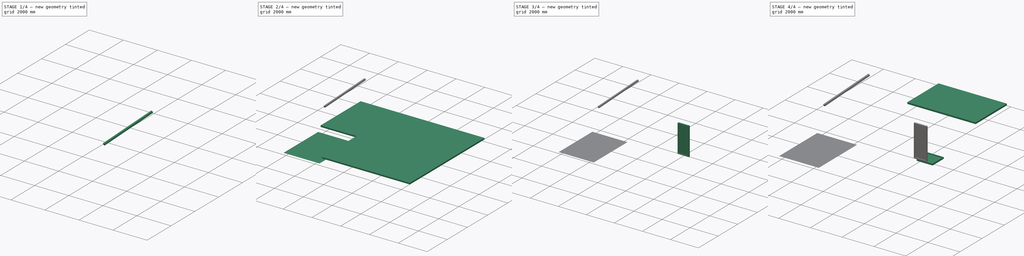
[diagram: build sequence overview — one tinted view per stage of 4, left to right]
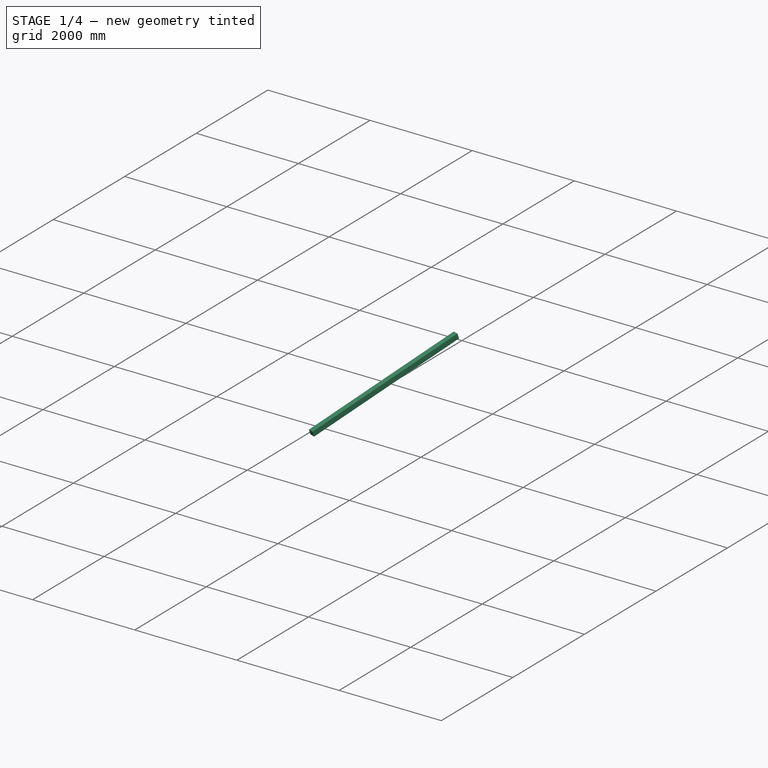
[diagram: stage 1 of 4 — iso view after this stage's code; geometry added in this stage tinted green]
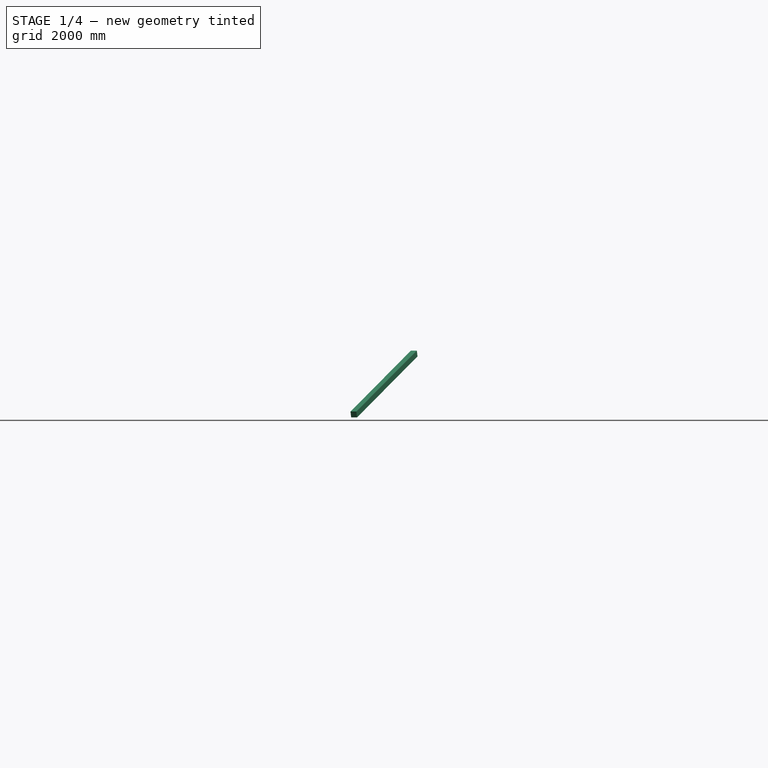
[diagram: stage 1 of 4 — front view after this stage's code; geometry added in this stage tinted green]
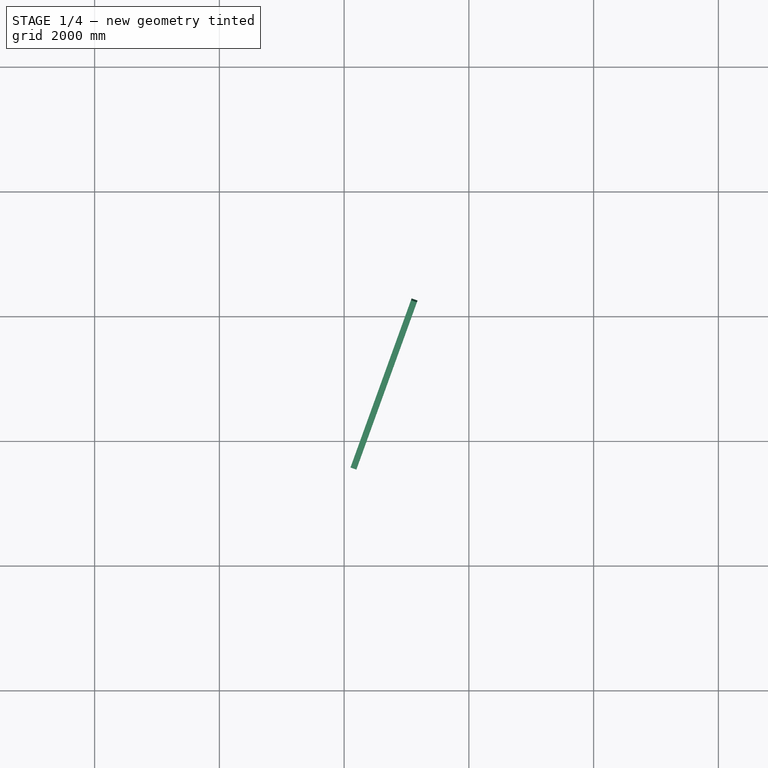
[diagram: stage 1 of 4 — top view after this stage's code; geometry added in this stage tinted green]
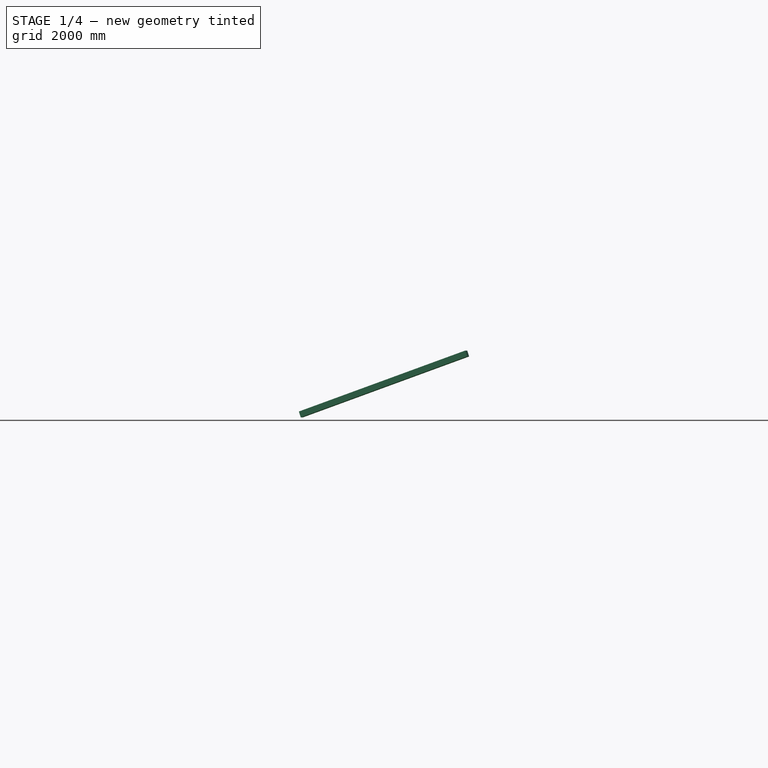
[diagram: stage 1 of 4 — right view after this stage's code; geometry added in this stage tinted green]
FCSTD DOCUMENT  (FreeCAD 0.18R16131 (Git))
Label: Home_terrace
License: All rights reserved
LicenseURL: http://en.wikipedia.org/wiki/All_rights_reserved
objects: Sketcher::SketchObject×11, Part::FeaturePython×8, Part::Extrusion×2, Part::RuledSurface×1, App::GeometryPython×1, App::MeasureDistance×1
note: 23 computed .brp shape members not serialized (recipe doc carries the construction recipe); baked Part::Feature solids carry a one-line shape summary decoded from their .brp

FEATURE [Sketcher::SketchObject] Sketch007
  ExternalGeometry = -> [Structure003,Wall]
  MapMode = 5
  Placement = pos=(0,0,100) rot=(0,0,1;0rad)
  Support = -> [Structure]
  sketch-geometry (4):
    g0: LineSegment StartX=3506.03 StartY=134.202 StartZ=0 EndX=3540.23 EndY=228.171 EndZ=0
    g1: LineSegment StartX=3506.03 StartY=134.202 StartZ=0 EndX=3600 EndY=100 EndZ=0
    g2: LineSegment StartX=3600 StartY=100 StartZ=0 EndX=3634.2 EndY=193.969 EndZ=0
    g3: LineSegment StartX=3634.2 StartY=193.969 StartZ=0 EndX=3540.23 EndY=228.171 EndZ=0
  constraints (12):
    c: Angle(g-2,g0) = 2.79253
    c: Perpendicular(g1,g0)
    c: Equal(g0,g1)
    c: Distance(g0) = 100
    c: Coincident(g1,g0)
    c: Parallel(g3,g1)
    c: Parallel(g0,g2)
    c: DistanceX(g-4,g1) = 1000
    c: Coincident(g3,g0)
    c: Coincident(g2,g1)
    c: Coincident(g3,g2)
    c: DistanceY(g-4,g1) = 0
FEATURE [Sketcher::SketchObject] Sketch008
  MapMode = 5
  Placement = pos=(3146.74,-1145.32,0) rot=(0.710565,0.497543,0.497543;1.90603rad)
  sketch-geometry (4):
    g0: LineSegment StartX=1325.24 StartY=1300 StartZ=0 EndX=6998.35 EndY=3253.41 EndZ=0
    g1: LineSegment StartX=6998.35 StartY=3253.41 StartZ=0 EndX=6965.8 EndY=3347.96 EndZ=0
    g2: LineSegment StartX=6965.8 StartY=3347.96 StartZ=0 EndX=1292.68 EndY=1394.55 EndZ=0
    g3: LineSegment StartX=1292.68 StartY=1394.55 StartZ=0 EndX=1325.24 EndY=1300 EndZ=0
  constraints (9):
    c: Coincident(g0,g1)
    c: Coincident(g1,g2)
    c: Coincident(g2,g3)
    c: Coincident(g3,g0)
    c: Perpendicular(g0,g3)
    c: Perpendicular(g2,g3)
    c: Equal(g2,g0)
    c: Distance(g2) = 6000
    c: Distance(g3) = 100
FEATURE [Sketcher::SketchObject] Sketch012
  MapMode = 5
  Placement = pos=(0,0,100) rot=(0,0,1;0rad)
  sketch-geometry (4):
    g0: LineSegment StartX=101.67 StartY=3579.99 StartZ=0 EndX=135.872 EndY=3673.96 EndZ=0
    g1: LineSegment StartX=101.67 StartY=3579.99 StartZ=0 EndX=195.639 EndY=3545.79 EndZ=0
    g2: LineSegment StartX=195.639 StartY=3545.79 StartZ=0 EndX=229.841 EndY=3639.75 EndZ=0
    g3: LineSegment StartX=229.841 StartY=3639.75 StartZ=0 EndX=135.872 EndY=3673.96 EndZ=0
  constraints (10):
    c: Angle(g-2,g0) = 2.79253
    c: Perpendicular(g1,g0)
    c: Equal(g0,g1)
    c: Distance(g0) = 100
    c: Coincident(g1,g0)
    c: Parallel(g3,g1)
    c: Parallel(g0,g2)
    c: Coincident(g3,g0)
    c: Coincident(g2,g1)
    c: Coincident(g3,g2)
FEATURE [Part::Extrusion] Extrude002
  Base = -> Sketch012
  Dir = (0,0,1)
  DirMode = 2
  FaceMakerClass = Part::FaceMakerBullseye
  LengthFwd = 1200
  LengthRev = 0
  Solid = true
  Symmetric = false
FEATURE [Sketcher::SketchObject] Sketch013
  ExternalGeometry = -> [Extrude002]
  MapMode = 5
  Placement = pos=(-966.84,351.901,-5.367e-13) rot=(0.710565,0.497543,0.497543;1.90603rad)
  Support = -> [Extrude002]
  sketch-geometry (4):
    g0: LineSegment StartX=3398.86 StartY=1300 StartZ=0 EndX=6235.42 EndY=2276.7 EndZ=0
    g1: LineSegment StartX=6235.42 StartY=2276.7 StartZ=0 EndX=6267.97 EndY=2182.15 EndZ=0
    g2: LineSegment StartX=6267.97 StartY=2182.15 StartZ=0 EndX=3431.42 EndY=1205.45 EndZ=0
    g3: LineSegment StartX=3431.42 StartY=1205.45 StartZ=0 EndX=3398.86 EndY=1300 EndZ=0
  constraints (11):
    c: Coincident(g0,g1)
    c: Coincident(g1,g2)
    c: Coincident(g2,g3)
    c: Coincident(g3,g0)
    c: Perpendicular(g0,g3)
    c: Perpendicular(g2,g3)
    c: Equal(g2,g0)
    c: Coincident(g0,g-3)
    c: Distance(g2) = 3000
    c: Distance(g3) = 100
    c: Angle(g-3,g0) = 0.331613
FEATURE [Part::Extrusion] Extrude003
  Base = -> Sketch013
  Dir = (0.939693,-0.34202,4e-16)
  DirMode = 2
  FaceMakerClass = Part::FaceMakerBullseye
  LengthFwd = -100
  LengthRev = 0
  Solid = true
  Symmetric = false
FEATURE [Sketcher::SketchObject] Sketch014
  MapMode = 5
  Placement = pos=(-2.51802,-6.9182,21.3814) rot=(0.998405,-0.008796,0.05576;3.45403rad)
  Support = -> [Extrude003]
  sketch-geometry (4):
    g0: LineSegment StartX=-516.125 StartY=-6452.76 StartZ=0 EndX=5483.88 EndY=-6452.76 EndZ=0
    g1: LineSegment StartX=5483.88 StartY=-6452.76 StartZ=0 EndX=5483.88 EndY=-2452.76 EndZ=0
    g2: LineSegment StartX=5483.88 StartY=-2452.76 StartZ=0 EndX=-516.125 EndY=-2452.76 EndZ=0
    g3: LineSegment StartX=-516.125 StartY=-2452.76 StartZ=0 EndX=-516.125 EndY=-6452.76 EndZ=0
  constraints (10):
    c: Coincident(g0,g1)
    c: Coincident(g1,g2)
    c: Coincident(g2,g3)
    c: Coincident(g3,g0)
    c: Horizontal(g0)
    c: Horizontal(g2)
    c: Vertical(g1)
    c: Vertical(g3)
    c: Distance(g1) = 4000
    c: Distance(g0) = 6000
FEATURE [Part::RuledSurface] Ruled_Surface001
  Curve1 = -> Sketch014 [Edge3]
  Curve2 = -> Sketch014 [Edge1]
  Orientation = 0
  Placement = pos=(-2.51802,-6.9182,21.3814) rot=(0.998405,-0.008796,0.05576;3.45403rad)
FEATURE [App::GeometryPython] BuildingPart001  label="Building001"  # Arch/BIM object (typed FeaturePython)
  Area = 0
  BuildingType = 0
  Group = -> [Extrude003,Extrude002,Ruled_Surface001]
  Height = 0
  IfcRole = 11
  LevelOffset = 0
FEATURE [App::MeasureDistance] Distance  label="Distance: 2.27 m"
  Distance = 2268.9
  P1 = (-537.703,6296.75,2209.51)
  P2 = (-100,6023.96,0)
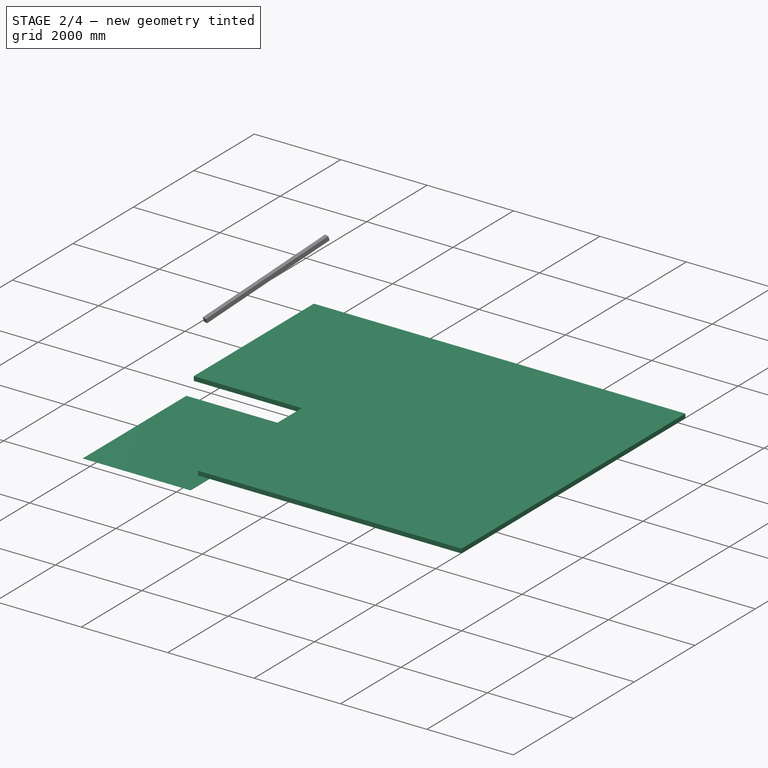
[diagram: stage 2 of 4 — iso view after this stage's code; geometry added in this stage tinted green]
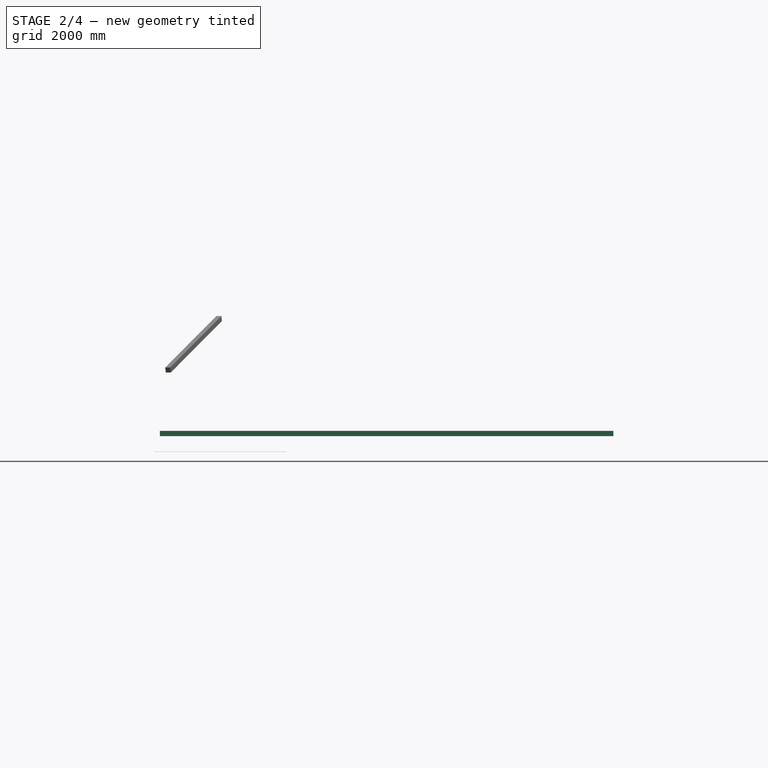
[diagram: stage 2 of 4 — front view after this stage's code; geometry added in this stage tinted green]
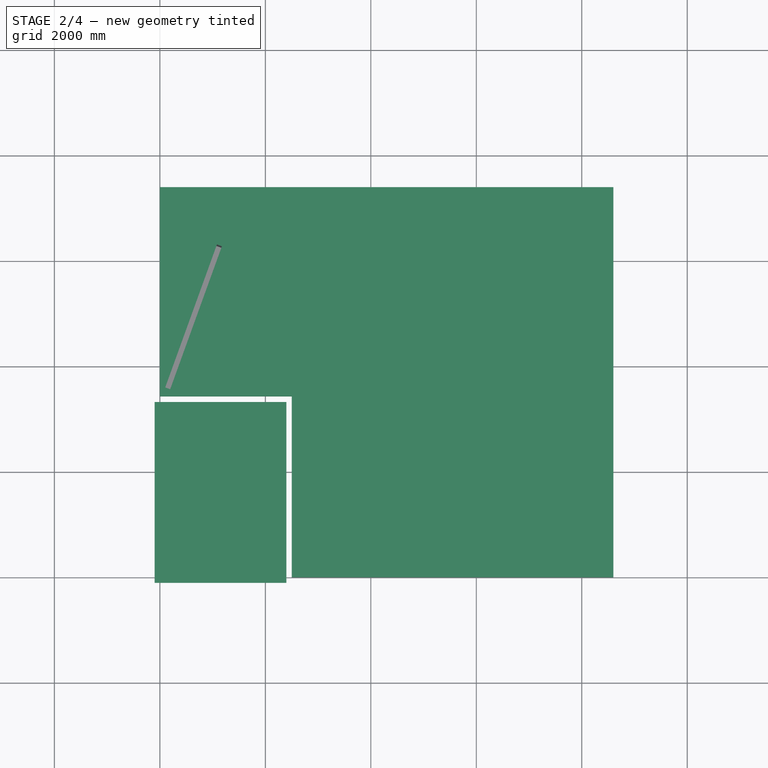
[diagram: stage 2 of 4 — top view after this stage's code; geometry added in this stage tinted green]
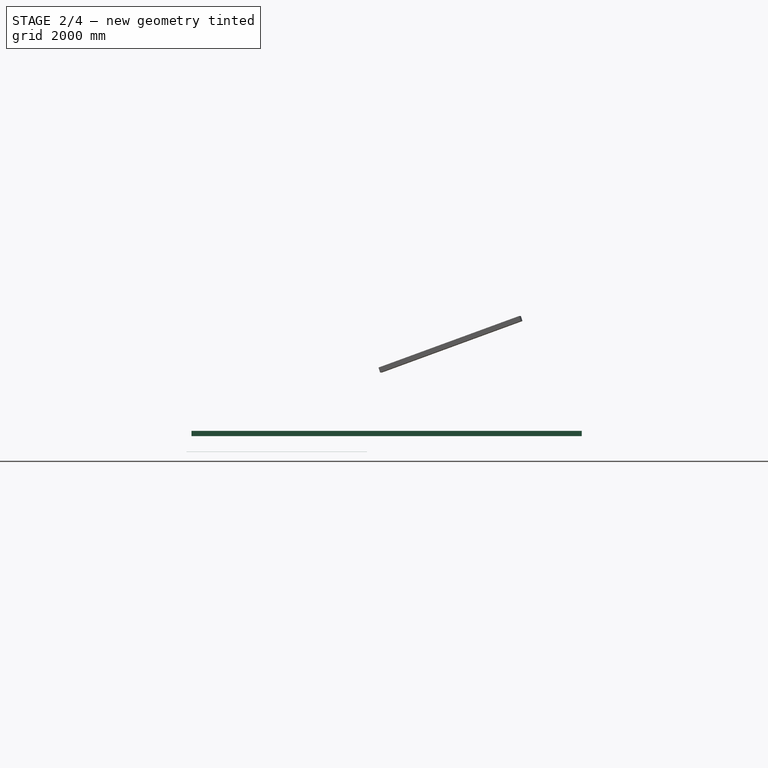
[diagram: stage 2 of 4 — right view after this stage's code; geometry added in this stage tinted green]
FEATURE [Part::FeaturePython] Structure  # Arch/BIM object (typed FeaturePython)
  Base = -> Sketch
  FaceMaker = 0
  Height = 100
  HorizontalArea = 54065000
  IfcRole = 0
  Length = 0
  MoveWithHost = false
  Nodes = (2) [(4774.96,4009.11,0),(4774.96,4009.11,100)]
  NodesOffset = 0
  Normal = (0,0,0)
  PerimeterLength = 32000
  VerticalArea = 3600000
  Width = 100
FEATURE [Part::FeaturePython] Wall002  # Arch/BIM object (typed FeaturePython)
  Align = 2
  Base = -> Sketch
  BlockHeight = 0
  BlockLength = 0
  CountBroken = 0
  CountEntire = 0
  Face = 0
  Height = -300
  HorizontalArea = 6400000
  IfcRole = 156
  Joint = 0
  Length = 32000
  MakeBlocks = false
  MoveWithHost = false
  Normal = (0,0,0)
  OffsetFirst = 0
  OffsetSecond = 0
  PerimeterLength = 32800
  VerticalArea = 19200000
  Width = 200
  expr: Height = -0.3m
FEATURE [Sketcher::SketchObject] Sketch006
  ExternalGeometry = -> [Wall002]
  MapMode = 5
  Placement = pos=(0,0,-300) rot=(1,0,0;3.14159rad)
  Support = -> [Wall002]
  sketch-geometry (4):
    g0: LineSegment StartX=2400 StartY=100 StartZ=0 EndX=-100 EndY=100 EndZ=0
    g1: LineSegment StartX=-100 StartY=100 StartZ=0 EndX=-100 EndY=-3330 EndZ=0
    g2: LineSegment StartX=-100 StartY=-3330 StartZ=0 EndX=2400 EndY=-3330 EndZ=0
    g3: LineSegment StartX=2400 StartY=-3330 StartZ=0 EndX=2400 EndY=100 EndZ=0
  constraints (8):
    c: Coincident(g0,g1)
    c: Coincident(g1,g2)
    c: Coincident(g2,g3)
    c: Coincident(g3,g0)
    c: Horizontal(g0)
    c: Horizontal(g2)
    c: Vertical(g1)
    c: Vertical(g3)
FEATURE [Part::FeaturePython] Structure003  # Arch/BIM object (typed FeaturePython)
  Base = -> Sketch006
  FaceMaker = 0
  Height = -100
  HorizontalArea = 8575000
  IfcRole = 0
  Length = 0
  MoveWithHost = false
  Nodes = (2) [(1150,1615,-300),(1150,1615,-301)]
  NodesOffset = 0
  Normal = (0,0,0)
  PerimeterLength = 11860
  VerticalArea = 11860
  Width = 100
  expr: Height = -0.1m
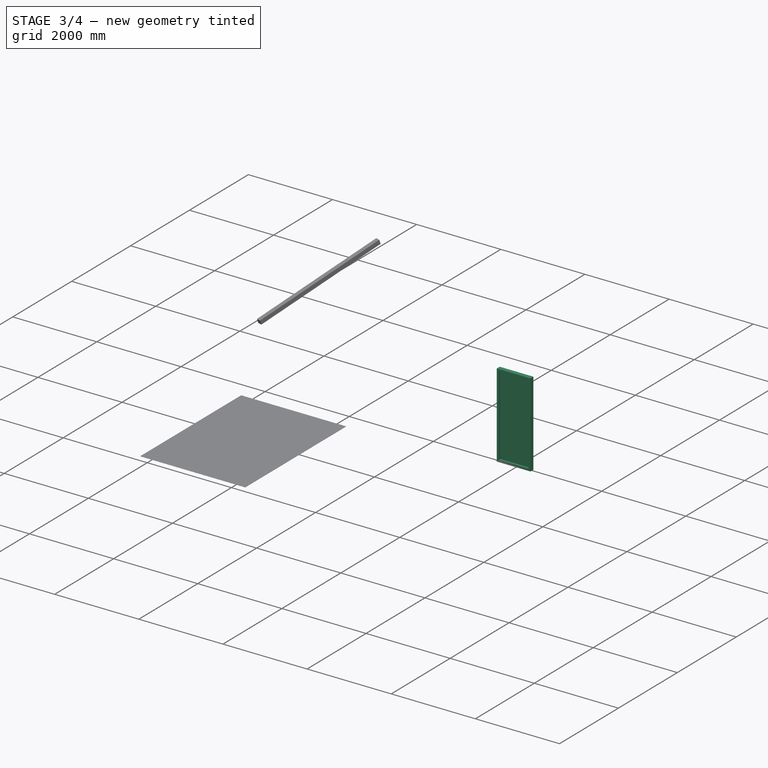
[diagram: stage 3 of 4 — iso view after this stage's code; geometry added in this stage tinted green]
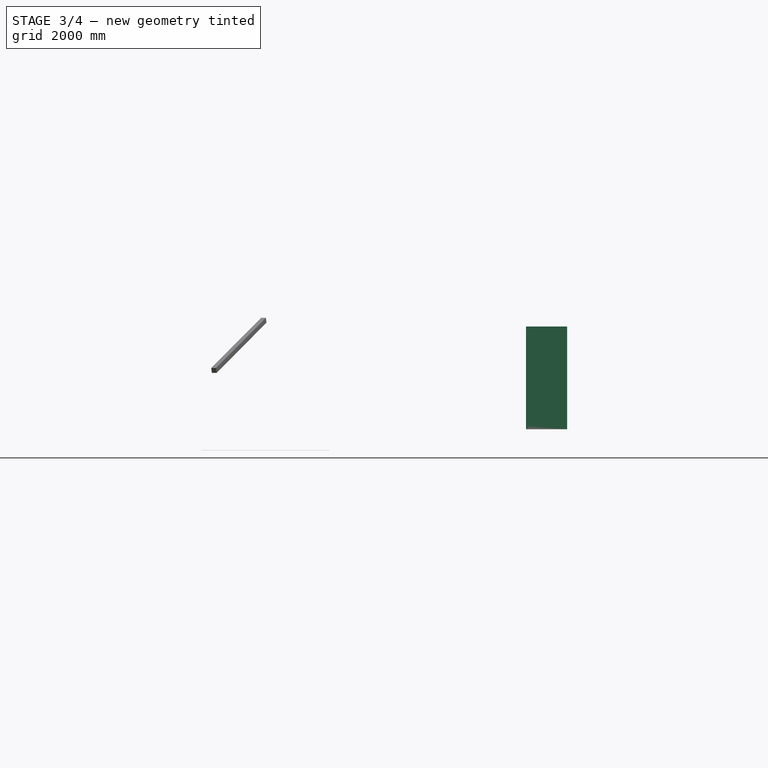
[diagram: stage 3 of 4 — front view after this stage's code; geometry added in this stage tinted green]
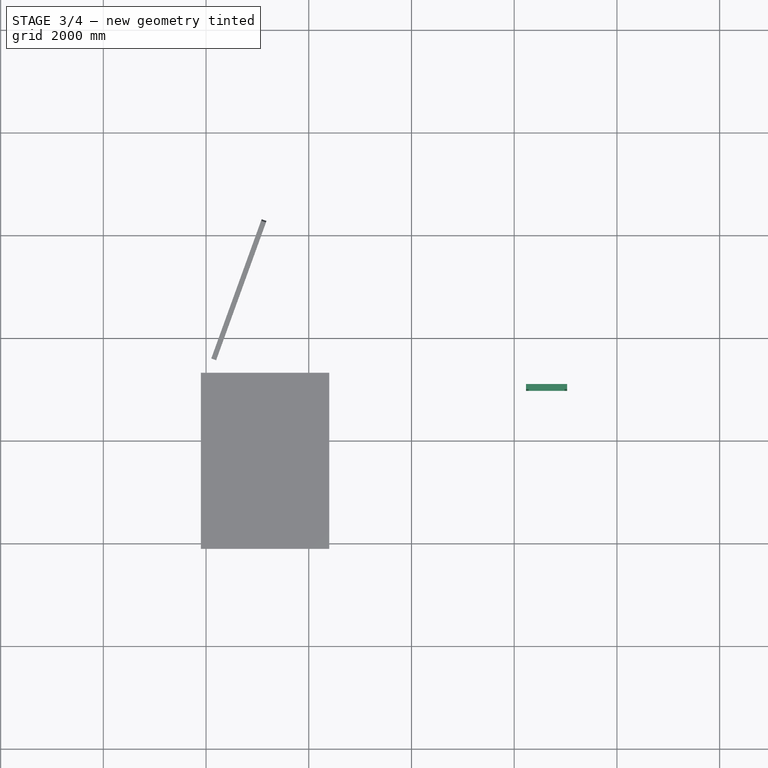
[diagram: stage 3 of 4 — top view after this stage's code; geometry added in this stage tinted green]
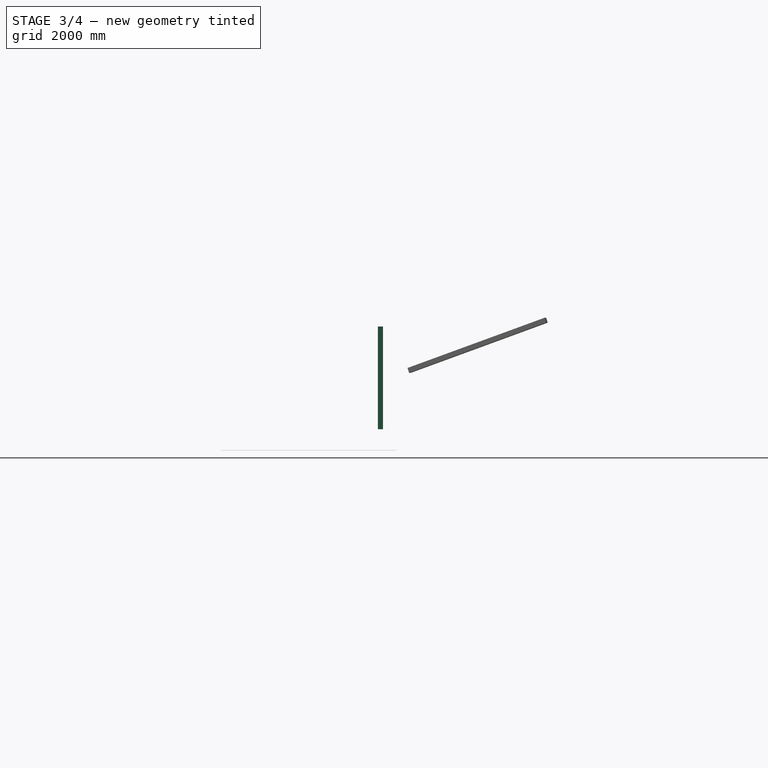
[diagram: stage 3 of 4 — right view after this stage's code; geometry added in this stage tinted green]
FEATURE [Sketcher::SketchObject] Sketch
  MapMode = 2
  Support = -> [Sketch]
  sketch-geometry (22):
    g0: LineSegment [constr] StartX=0 StartY=0 StartZ=0 EndX=8600 EndY=0 EndZ=0
    g1: LineSegment [constr] StartX=8600 StartY=0 StartZ=0 EndX=8600 EndY=7400 EndZ=0
    g2: LineSegment [constr] StartX=8600 StartY=7400 StartZ=0 EndX=0 EndY=7400 EndZ=0
    g3: LineSegment [constr] StartX=0 StartY=7400 StartZ=0 EndX=0 EndY=0 EndZ=0
    g4: LineSegment [constr] StartX=0 StartY=0 StartZ=0 EndX=2500 EndY=0 EndZ=0
    g5: LineSegment [constr] StartX=2500 StartY=0 StartZ=0 EndX=2500 EndY=3430 EndZ=0
    g6: LineSegment [constr] StartX=2500 StartY=3430 StartZ=0 EndX=0 EndY=3430 EndZ=0
    g7: LineSegment [constr] StartX=0 StartY=3430 StartZ=0 EndX=0 EndY=0 EndZ=0
    g8: LineSegment [constr] StartX=6100 StartY=5680 StartZ=0 EndX=10701.7 EndY=5680 EndZ=0
    g9: LineSegment [constr] StartX=10701.7 StartY=5680 StartZ=0 EndX=10701.7 EndY=3180 EndZ=0
    g10: LineSegment [constr] StartX=10701.7 StartY=3180 StartZ=0 EndX=6100 EndY=3180 EndZ=0
    g11: LineSegment [constr] StartX=6100 StartY=3180 StartZ=0 EndX=6100 EndY=5680 EndZ=0
    g12: GeomPoint X=8600 Y=5680 Z=0
    g13: GeomPoint X=8600 Y=3180 Z=0
    g14: LineSegment StartX=8600 StartY=5680 StartZ=0 EndX=8600 EndY=7400 EndZ=0
    g15: LineSegment StartX=8600 StartY=7400 StartZ=0 EndX=0 EndY=7400 EndZ=0
    g16: LineSegment StartX=0 StartY=7400 StartZ=0 EndX=0 EndY=3430 EndZ=0
    g17: LineSegment StartX=0 StartY=3430 StartZ=0 EndX=2500 EndY=3430 EndZ=0
    g18: LineSegment StartX=2500 StartY=3430 StartZ=0 EndX=2500 EndY=0 EndZ=0
    g19: LineSegment StartX=2500 StartY=0 StartZ=0 EndX=8600 EndY=0 EndZ=0
    g20: LineSegment StartX=8600 StartY=0 StartZ=0 EndX=8600 EndY=3180 EndZ=0
    g21: LineSegment StartX=8600 StartY=3180 StartZ=0 EndX=8600 EndY=5680 EndZ=0
  constraints (52):
    c: Coincident(g0,g1)
    c: Coincident(g1,g2)
    c: Coincident(g2,g3)
    c: Coincident(g3,g0)
    c: Horizontal(g0)
    c: Horizontal(g2)
    c: Vertical(g1)
    c: Vertical(g3)
    c: Distance(g1) = 7400
    c: Distance(g2) = 8600
    c: PointOnObject(g0,g-1)
    c: Coincident(g4,g5)
    c: Coincident(g5,g6)
    c: Coincident(g6,g7)
    c: Coincident(g7,g4)
    c: Horizontal(g4)
    c: Horizontal(g6)
    c: Vertical(g5)
    c: Vertical(g7)
    c: Distance(g6) = 2500
    c: Distance(g5) = 3430
    c: PointOnObject(g6,g3)
    c: PointOnObject(g4,g0)
    c: Coincident(g8,g9)
    c: Coincident(g9,g10)
    c: Coincident(g10,g11)
    c: Coincident(g11,g8)
    c: Horizontal(g8)
    c: Horizontal(g10)
    c: Vertical(g9)
    c: Vertical(g11)
    c: Distance(g11) = 2500
    c: PointOnObject(g-1,g3)
    c: DistanceX(g8,g1) = 2500
    c: DistanceY(g8,g1) = 1720
    c: PointOnObject(g12,g8)
    c: PointOnObject(g13,g10)
    c: PointOnObject(g12,g1)
    c: PointOnObject(g13,g1)
    c: Coincident(g14,g15)
    c: Coincident(g15,g16)
    c: Coincident(g16,g17)
    c: Coincident(g17,g18)
    c: Coincident(g18,g19)
    c: Coincident(g19,g20)
    c: Coincident(g13,g20)
    c: Coincident(g1,g14)
    c: Coincident(g15,g2)
    c: Coincident(g16,g6)
    c: Coincident(g17,g5)
    c: Coincident(g18,g4)
    c: Coincident(g19,g0)
FEATURE [Part::FeaturePython] Wall  # Arch/BIM object (typed FeaturePython)
  Align = 2
  Base = -> Sketch
  BlockHeight = 0
  BlockLength = 0
  CountBroken = 0
  CountEntire = 0
  Face = 0
  Height = 1000
  HorizontalArea = 6400000
  IfcRole = 156
  Joint = 0
  Length = 32000
  MakeBlocks = false
  MoveWithHost = false
  Normal = (0,0,0)
  OffsetFirst = 0
  OffsetSecond = 0
  PerimeterLength = 32800
  VerticalArea = 64000000
  Width = 200
FEATURE [Sketcher::SketchObject] Sketch001
  ExternalGeometry = -> [Wall]
  MapMode = 5
  Placement = pos=(2500,0,0) rot=(0.57735,-0.57735,-0.57735;2.0944rad)
  Support = -> [Structure]
  sketch-geometry (4):
    g0: LineSegment StartX=-5800 StartY=-720 StartZ=0 EndX=-9800 EndY=-720 EndZ=0
    g1: LineSegment StartX=-9800 StartY=-720 StartZ=0 EndX=-9800 EndY=1780 EndZ=0
    g2: LineSegment StartX=-9800 StartY=1780 StartZ=0 EndX=-5800 EndY=1780 EndZ=0
    g3: LineSegment StartX=-5800 StartY=1780 StartZ=0 EndX=-5800 EndY=-720 EndZ=0
  constraints (12):
    c: Coincident(g0,g1)
    c: Coincident(g1,g2)
    c: Coincident(g2,g3)
    c: Coincident(g3,g0)
    c: Horizontal(g0)
    c: Horizontal(g2)
    c: Vertical(g1)
    c: Vertical(g3)
    c: DistanceX(g0,g-5) = 2500
    c: DistanceY(g0,g-5) = 1720
    c: Distance(g1) = 2500
    c: Distance(g2) = 4000
FEATURE [Part::FeaturePython] Wall001  # Arch/BIM object (typed FeaturePython)
  Align = 2
  Base = -> Sketch001
  BlockHeight = 0
  BlockLength = 0
  CountBroken = 0
  CountEntire = 0
  Face = 0
  Height = 3000
  HorizontalArea = 2.6e+06
  IfcRole = 156
  Joint = 0
  Length = 13000
  MakeBlocks = false
  MoveWithHost = false
  Normal = (0,0,0)
  OffsetFirst = 0
  OffsetSecond = 0
  PerimeterLength = 13800
  VerticalArea = 78000000
  Width = 200
FEATURE [Sketcher::SketchObject] Sketch005
  ExternalGeometry = -> [Wall001]
  Placement = pos=(6410.07,2968.84,100) rot=(1,0,0;1.5708rad)
  sketch-geometry (8):
    g0: LineSegment StartX=-180.394 StartY=6.24788 StartZ=0 EndX=619.606 EndY=6.24788 EndZ=0
    g1: LineSegment StartX=619.606 StartY=6.24788 StartZ=0 EndX=619.606 EndY=2006.25 EndZ=0
    g2: LineSegment StartX=619.606 StartY=2006.25 StartZ=0 EndX=-180.394 EndY=2006.25 EndZ=0
    g3: LineSegment StartX=-180.394 StartY=2006.25 StartZ=0 EndX=-180.394 EndY=6.24788 EndZ=0
    g4: LineSegment StartX=-130.394 StartY=56.2479 StartZ=0 EndX=569.606 EndY=56.2479 EndZ=0
    g5: LineSegment StartX=569.606 StartY=56.2479 StartZ=0 EndX=569.606 EndY=1956.25 EndZ=0
    g6: LineSegment StartX=569.606 StartY=1956.25 StartZ=0 EndX=-130.394 EndY=1956.25 EndZ=0
    g7: LineSegment StartX=-130.394 StartY=1956.25 StartZ=0 EndX=-130.394 EndY=56.2479 EndZ=0
  constraints (22):
    c: Coincident(g0,g1)
    c: Coincident(g1,g2)
    c: Coincident(g2,g3)
    c: Coincident(g3,g0)
    c: Horizontal(g0)
    c: Horizontal(g2)
    c: Vertical(g1)
    c: Vertical(g3)
    c: Coincident(g4,g5)
    c: Coincident(g5,g6)
    c: Coincident(g6,g7)
    c: Coincident(g7,g4)
    c: Horizontal(g4)
    c: Horizontal(g6)
    c: Vertical(g5)
    c: Vertical(g7)
    c: DistanceY(g1) = 2000  'Height'
    c: DistanceX(g0) = 800  'Width'
    c: DistanceY(g6,g2) = 50  'Frame1'
    c: DistanceX(g2,g6) = 50  'Frame2'
    c: DistanceX(g4,g0) = 50  'Frame3'
    c: DistanceY(g0,g4) = 50  'Frame4'
FEATURE [Part::FeaturePython] Window001  # Arch/BIM object (typed FeaturePython)
  Area = 1000000
  Base = -> Sketch005
  Frame = 50
  Height = 1000
  HoleDepth = 1000
  HoleWire = 0
  HorizontalArea = 0
  Hosts = -> [Wall001]
  IfcRole = 160
  LouvreSpacing = 0
  LouvreWidth = 0
  MoveWithHost = true
  Normal = (0,1,-2e-16)
  Opening = 0
  PerimeterLength = 0
  Preset = 1
  SymbolElevation = false
  SymbolPlan = false
  VerticalArea = 0
  Width = 1000
  WindowParts = OuterFrame | Frame | Wire0,Wire1 | 50.0+V | 0.00+V | Glass | Glass panel | Wire1 | 10.0 | 50.0+V
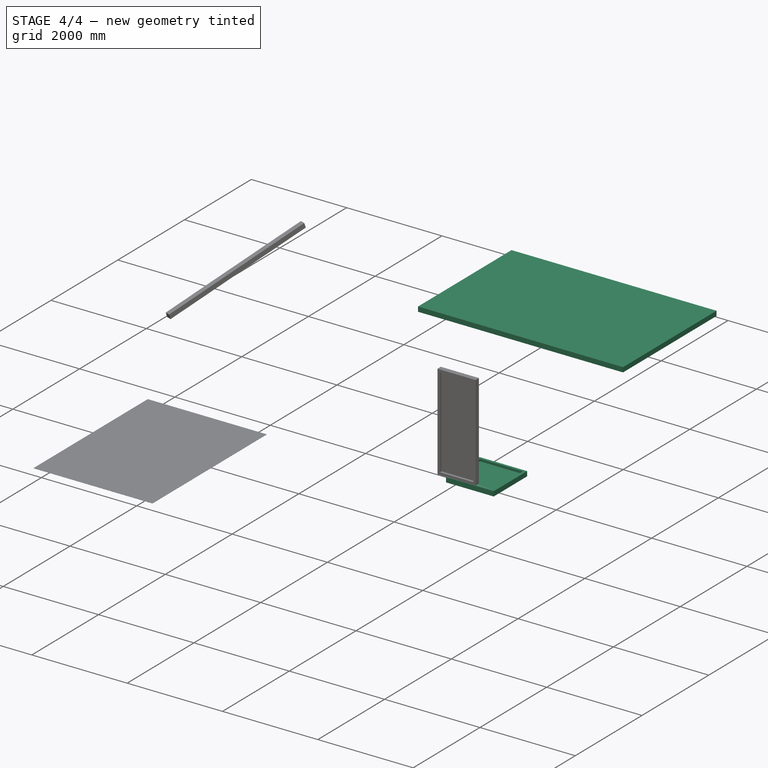
[diagram: stage 4 of 4 — iso view after this stage's code; geometry added in this stage tinted green]
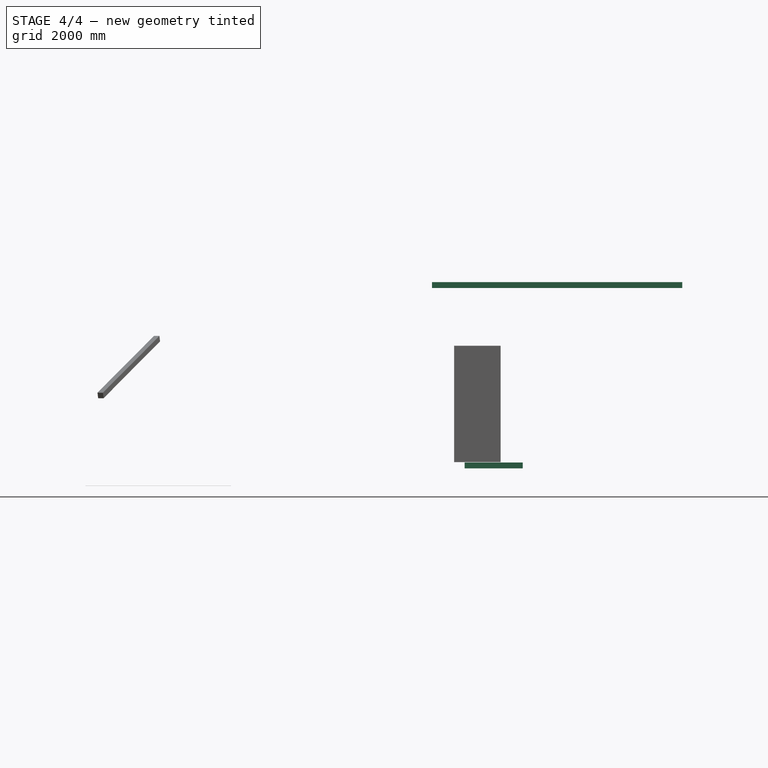
[diagram: stage 4 of 4 — front view after this stage's code; geometry added in this stage tinted green]
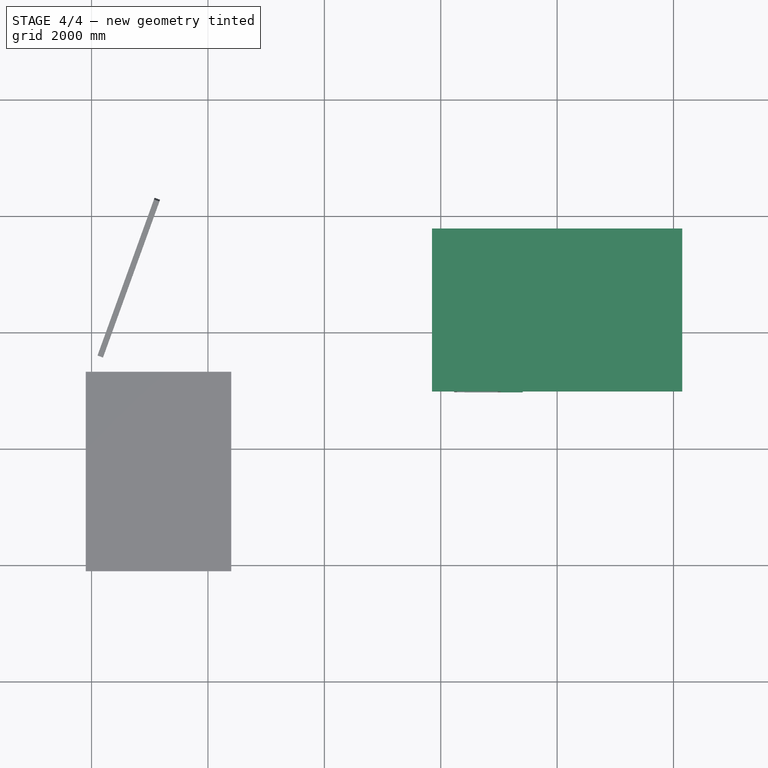
[diagram: stage 4 of 4 — top view after this stage's code; geometry added in this stage tinted green]
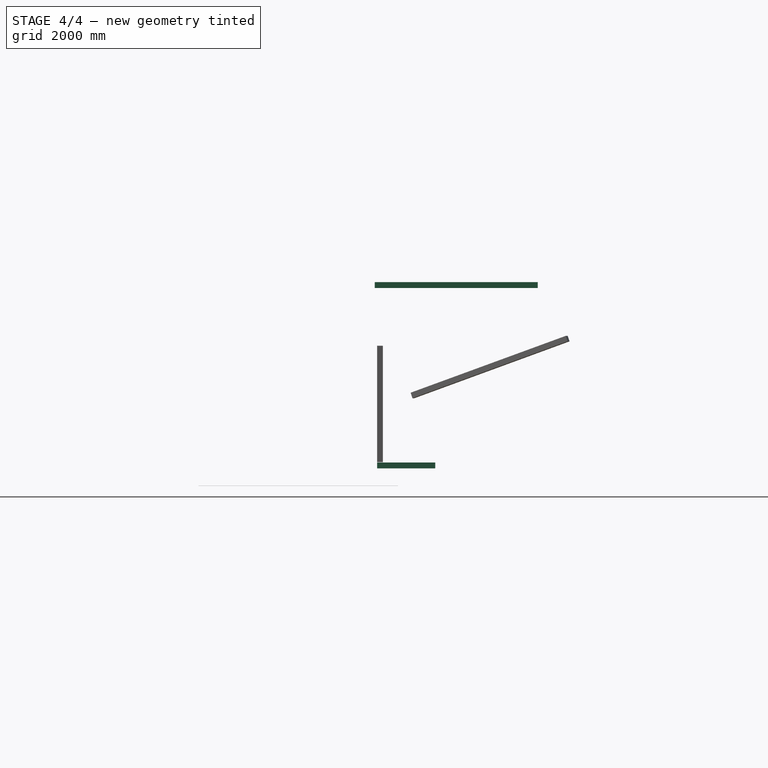
[diagram: stage 4 of 4 — right view after this stage's code; geometry added in this stage tinted green]
FEATURE [Sketcher::SketchObject] Sketch002
  ExternalGeometry = -> [Wall001]
  MapMode = 5
  Placement = pos=(0,0,3100) rot=(0,0,1;0rad)
  Support = -> [Wall001]
  sketch-geometry (4):
    g0: LineSegment StartX=5850 StartY=2930 StartZ=0 EndX=10150 EndY=2930 EndZ=0
    g1: LineSegment StartX=10150 StartY=2930 StartZ=0 EndX=10150 EndY=5730 EndZ=0
    g2: LineSegment StartX=10150 StartY=5730 StartZ=0 EndX=5850 EndY=5730 EndZ=0
    g3: LineSegment StartX=5850 StartY=5730 StartZ=0 EndX=5850 EndY=2930 EndZ=0
  constraints (12):
    c: Coincident(g0,g1)
    c: Coincident(g1,g2)
    c: Coincident(g2,g3)
    c: Coincident(g3,g0)
    c: Horizontal(g0)
    c: Horizontal(g2)
    c: Vertical(g1)
    c: Vertical(g3)
    c: DistanceY(g-4,g2) = 50
    c: DistanceY(g0,g-6) = 50
    c: DistanceX(g2,g-4) = 50
    c: DistanceX(g-6,g0) = 50
FEATURE [Part::FeaturePython] Structure001  # Arch/BIM object (typed FeaturePython)
  Base = -> Sketch002
  FaceMaker = 0
  Height = 100
  HorizontalArea = 12040000
  IfcRole = 0
  Length = 0
  MoveWithHost = false
  Nodes = (2) [(8000,4330,3100),(8000,4330,3200)]
  NodesOffset = 0
  Normal = (0,0,0)
  PerimeterLength = 14200
  VerticalArea = 1420000
  Width = 100
FEATURE [Sketcher::SketchObject] Sketch003
  Placement = pos=(6410.07,2968.84,100) rot=(0,0,1;0rad)
  sketch-geometry (8):
    g0: LineSegment StartX=0 StartY=0 StartZ=0 EndX=1000 EndY=0 EndZ=0
    g1: LineSegment StartX=1000 StartY=0 StartZ=0 EndX=1000 EndY=1000 EndZ=0
    g2: LineSegment StartX=1000 StartY=1000 StartZ=0 EndX=0 EndY=1000 EndZ=0
    g3: LineSegment StartX=0 StartY=1000 StartZ=0 EndX=0 EndY=0 EndZ=0
    g4: LineSegment StartX=50 StartY=50 StartZ=0 EndX=950 EndY=50 EndZ=0
    g5: LineSegment StartX=950 StartY=50 StartZ=0 EndX=950 EndY=950 EndZ=0
    g6: LineSegment StartX=950 StartY=950 StartZ=0 EndX=50 EndY=950 EndZ=0
    g7: LineSegment StartX=50 StartY=950 StartZ=0 EndX=50 EndY=50 EndZ=0
  constraints (23):
    c: Coincident(g0,g1)
    c: Coincident(g1,g2)
    c: Coincident(g2,g3)
    c: Coincident(g3,g0)
    c: Horizontal(g0)
    c: Horizontal(g2)
    c: Vertical(g1)
    c: Vertical(g3)
    c: Coincident(g4,g5)
    c: Coincident(g5,g6)
    c: Coincident(g6,g7)
    c: Coincident(g7,g4)
    c: Horizontal(g4)
    c: Horizontal(g6)
    c: Vertical(g5)
    c: Vertical(g7)
    c: DistanceY(g1) = 1000  'Height'
    c: DistanceX(g0) = 1000  'Width'
    c: DistanceY(g6,g2) = 50  'Frame1'
    c: DistanceX(g2,g6) = 50  'Frame2'
    c: DistanceX(g4,g0) = 50  'Frame3'
    c: DistanceY(g0,g4) = 50  'Frame4'
    c: Coincident(g0,g-1)
FEATURE [Part::FeaturePython] Window  # Arch/BIM object (typed FeaturePython)
  Area = 1000000
  Base = -> Sketch003
  Frame = 50
  Height = 1000
  HoleDepth = 0
  HoleWire = 0
  HorizontalArea = 0
  Hosts = -> [Structure]
  IfcRole = 160
  LouvreSpacing = 0
  LouvreWidth = 0
  MoveWithHost = true
  Normal = (0,0,-1)
  Opening = 0
  PerimeterLength = 0
  Preset = 1
  SymbolElevation = false
  SymbolPlan = false
  VerticalArea = 0
  Width = 1000
  WindowParts = OuterFrame | Frame | Wire0,Wire1 | 50.0+V | 0.00+V | Glass | Glass panel | Wire1 | 10.0 | 50.0+V
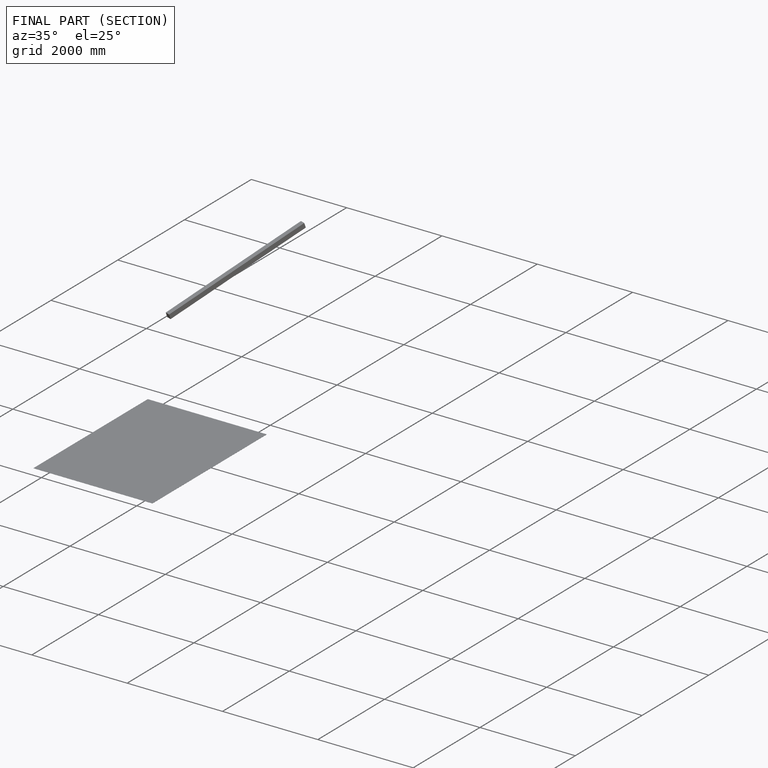
[diagram: finished part — half-section view (interior)]
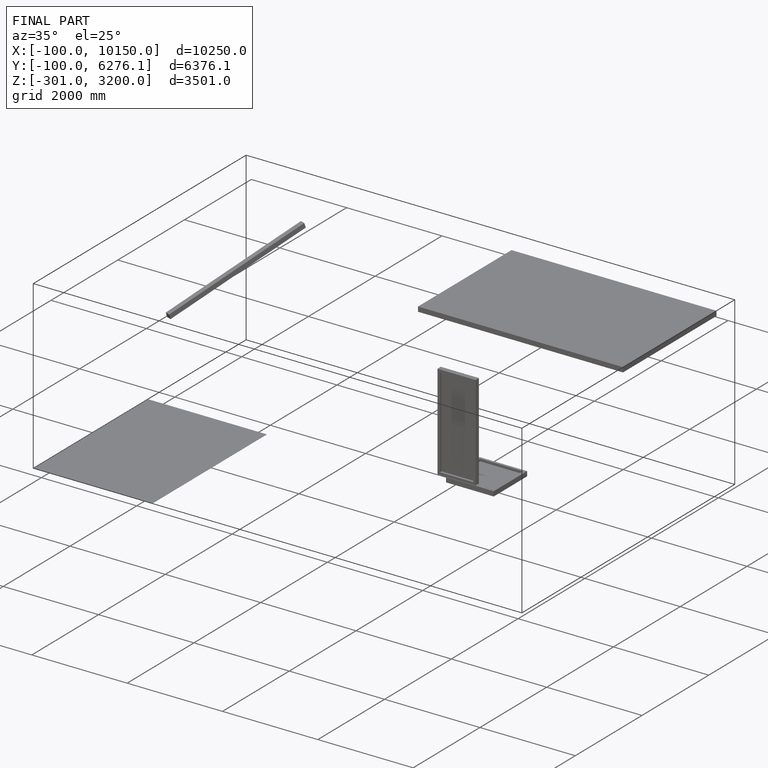
[diagram: finished part — iso view with bounding-box wireframe]
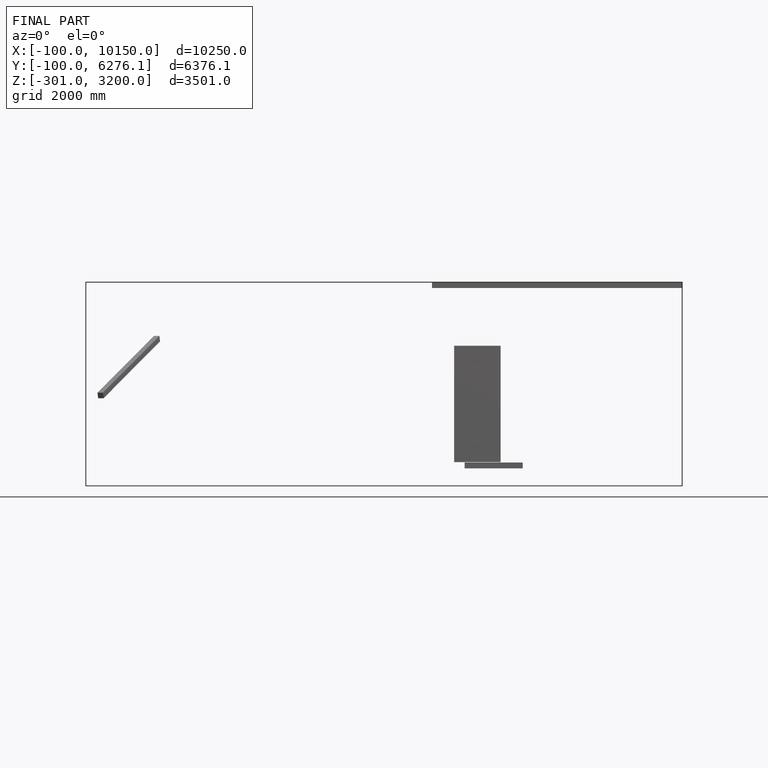
[diagram: finished part — front view with bounding-box wireframe]
